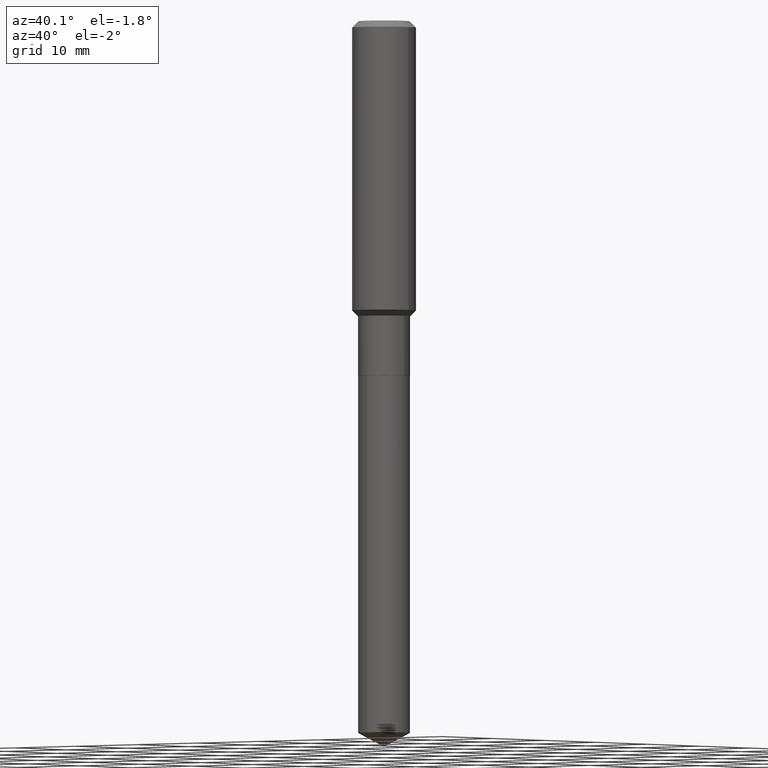
[diagram: clean part render]
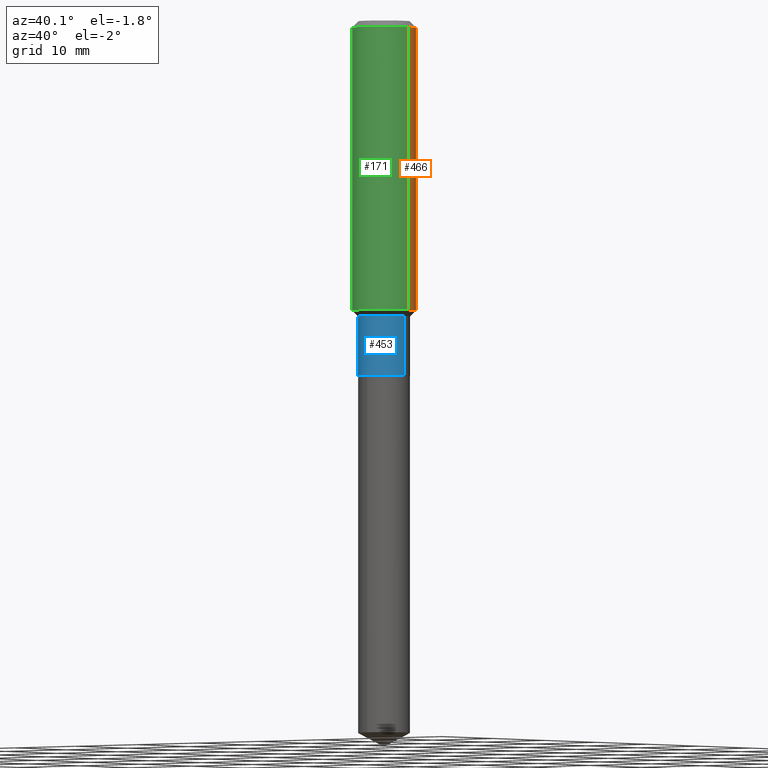
[diagram: same view with three faces highlighted in distinct colors, each labeled with its STEP entity id]
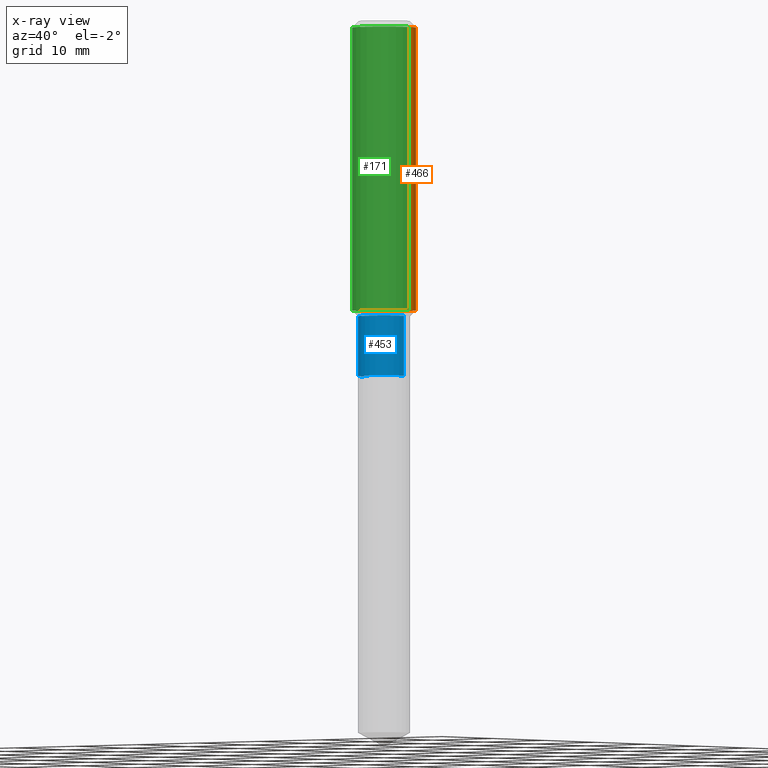
[diagram: x-ray of the same camera — body ghosted, the three highlighted faces saturated]
A machine part, auxiliary view with three faces highlighted in distinct colors.
The next image is the same camera in x-ray (body ghosted, the three faces saturated) — at least one of them is partly hidden behind the body in this view.
Their STEP definitions:

[orange] entity #466 — the highlighted cylindrical surface (edge-blend (fillet) strip) has radius 4.0005 mm, axis along (-0, 0, 1).
#15 = CIRCLE ( 'NONE', #238, 0.1575000000000001676 ) ;
#17 = CARTESIAN_POINT ( 'NONE',  ( 0.1575000000000000844, -1.099816621735587677E-15, 7.679978421878603638E-30 ) ) ;
#48 = DIRECTION ( 'NONE',  ( 1.000000000000000000, -6.982962677686267499E-15, 0.000000000000000000 ) ) ;
#53 = EDGE_CURVE ( 'NONE', #147, #361, #56, .T. ) ;
#56 = LINE ( 'NONE', #17, #309 ) ;
#77 = DIRECTION ( 'NONE',  ( -2.445468806185136597E-29, 3.491481338843145583E-15, 1.000000000000000000 ) ) ;
#90 = DIRECTION ( 'NONE',  ( 1.000000000000000000, -6.982962677686267499E-15, 4.876176775795936353E-29 ) ) ;
#95 = ORIENTED_EDGE ( 'NONE', *, *, #325, .T. ) ;
#116 = VECTOR ( 'NONE', #480, 39.37007874015748143 ) ;
#136 = EDGE_CURVE ( 'NONE', #264, #469, #146, .T. ) ;
#146 = LINE ( 'NONE', #383, #116 ) ;
#147 = VERTEX_POINT ( 'NONE', #228 ) ;
#153 = EDGE_LOOP ( 'NONE', ( #95, #243, #347, #333 ) ) ;
#202 = CARTESIAN_POINT ( 'NONE',  ( -0.1575000000000001676, -3.868127135581389429E-15, -1.428399999999999892 ) ) ;
#228 = CARTESIAN_POINT ( 'NONE',  ( 0.1575000000000001676, -6.087048566139137668E-15, -1.428399999999999892 ) ) ;
#238 = AXIS2_PLACEMENT_3D ( 'NONE', #313, #350, #48 ) ;
#240 = EDGE_CURVE ( 'NONE', #361, #469, #465, .T. ) ;
#242 = CARTESIAN_POINT ( 'NONE',  ( -0.1575000000000000011, -1.429501994466395839E-15, -0.03150000000000019451 ) ) ;
#243 = ORIENTED_EDGE ( 'NONE', *, *, #136, .T. ) ;
#259 = AXIS2_PLACEMENT_3D ( 'NONE', #375, #77, #427 ) ;
#264 = VERTEX_POINT ( 'NONE', #202 ) ;
#309 = VECTOR ( 'NONE', #403, 39.37007874015748143 ) ;
#313 = CARTESIAN_POINT ( 'NONE',  ( 3.493107642754849131E-29, -4.987231944403549399E-15, -1.428399999999999892 ) ) ;
#323 = DIRECTION ( 'NONE',  ( -2.445468806185136597E-29, 3.491481338843145583E-15, 1.000000000000000000 ) ) ;
#325 = EDGE_CURVE ( 'NONE', #147, #264, #15, .T. ) ;
#333 = ORIENTED_EDGE ( 'NONE', *, *, #53, .F. ) ;
#343 = AXIS2_PLACEMENT_3D ( 'NONE', #439, #323, #90 ) ;
#347 = ORIENTED_EDGE ( 'NONE', *, *, #240, .F. ) ;
#350 = DIRECTION ( 'NONE',  ( -2.445468806185136597E-29, 3.491481338843145583E-15, 1.000000000000000000 ) ) ;
#361 = VERTEX_POINT ( 'NONE', #451 ) ;
#375 = CARTESIAN_POINT ( 'NONE',  ( 7.703226739483228723E-31, -1.099816621735597661E-16, -0.03150000000000019451 ) ) ;
#383 = CARTESIAN_POINT ( 'NONE',  ( -0.1575000000000000844, 1.119104808822158392E-15, -7.747322767151481189E-30 ) ) ;
#403 = DIRECTION ( 'NONE',  ( -2.445468806185136877E-29, 3.491481338843145188E-15, 1.000000000000000000 ) ) ;
#427 = DIRECTION ( 'NONE',  ( 1.000000000000000000, -6.982962677686265922E-15, 0.000000000000000000 ) ) ;
#434 = CYLINDRICAL_SURFACE ( 'NONE', #343, 0.1575000000000000844 ) ;
#439 = CARTESIAN_POINT ( 'NONE',  ( 0.000000000000000000, 0.000000000000000000, 0.000000000000000000 ) ) ;
#451 = CARTESIAN_POINT ( 'NONE',  ( 0.1575000000000000011, -1.209798283909146741E-15, -0.03150000000000019451 ) ) ;
#463 = FACE_OUTER_BOUND ( 'NONE', #153, .T. ) ;
#465 = CIRCLE ( 'NONE', #259, 0.1575000000000000011 ) ;
#466 = ADVANCED_FACE ( 'NONE', ( #463 ), #434, .T. ) ;
#469 = VERTEX_POINT ( 'NONE', #242 ) ;
#480 = DIRECTION ( 'NONE',  ( -2.445468806185136877E-29, 3.491481338843145188E-15, 1.000000000000000000 ) ) ;

[blue] entity #453 — the highlighted cylindrical surface (edge-blend (fillet) strip) has radius 3.2639 mm, axis along (-0, 0, 1).
#9 = LINE ( 'NONE', #355, #428 ) ;
#12 = EDGE_CURVE ( 'NONE', #289, #144, #204, .T. ) ;
#23 = ORIENTED_EDGE ( 'NONE', *, *, #425, .F. ) ;
#35 = CARTESIAN_POINT ( 'NONE',  ( 0.000000000000000000, 0.000000000000000000, 0.000000000000000000 ) ) ;
#38 = CARTESIAN_POINT ( 'NONE',  ( -0.1285000000000000309, -4.690605559324578003E-15, -1.752499999999999947 ) ) ;
#66 = DIRECTION ( 'NONE',  ( -2.445468806185136877E-29, 3.491481338843145188E-15, 1.000000000000000000 ) ) ;
#92 = EDGE_LOOP ( 'NONE', ( #23, #338, #214, #435 ) ) ;
#103 = LINE ( 'NONE', #183, #122 ) ;
#122 = VECTOR ( 'NONE', #66, 39.37007874015748143 ) ;
#132 = CARTESIAN_POINT ( 'NONE',  ( -0.1284999999999999754, -4.690605559324578003E-15, -1.457400000000000251 ) ) ;
#144 = VERTEX_POINT ( 'NONE', #335 ) ;
#154 = DIRECTION ( 'NONE',  ( -2.445468806185136597E-29, 3.491481338843145583E-15, 1.000000000000000000 ) ) ;
#165 = VERTEX_POINT ( 'NONE', #38 ) ;
#174 = DIRECTION ( 'NONE',  ( -2.445468806185136597E-29, 3.491481338843145583E-15, 1.000000000000000000 ) ) ;
#177 = CARTESIAN_POINT ( 'NONE',  ( 3.564026238134218164E-29, -5.088484903230000551E-15, -1.457400000000000251 ) ) ;
#179 = DIRECTION ( 'NONE',  ( 1.000000000000000000, -6.982962677686270655E-15, 0.000000000000000000 ) ) ;
#183 = CARTESIAN_POINT ( 'NONE',  ( -0.1285000000000000031, 9.130474154517287609E-16, -6.320831590977552957E-30 ) ) ;
#204 = CIRCLE ( 'NONE', #314, 0.1284999999999999754 ) ;
#205 = AXIS2_PLACEMENT_3D ( 'NONE', #35, #154, #409 ) ;
#214 = ORIENTED_EDGE ( 'NONE', *, *, #315, .T. ) ;
#252 = DIRECTION ( 'NONE',  ( 1.000000000000000000, -6.982962677686269077E-15, 0.000000000000000000 ) ) ;
#257 = CYLINDRICAL_SURFACE ( 'NONE', #205, 0.1285000000000000031 ) ;
#260 = AXIS2_PLACEMENT_3D ( 'NONE', #373, #292, #252 ) ;
#289 = VERTEX_POINT ( 'NONE', #132 ) ;
#292 = DIRECTION ( 'NONE',  ( -2.445468806185136597E-29, 3.491481338843145583E-15, 1.000000000000000000 ) ) ;
#300 = CIRCLE ( 'NONE', #260, 0.1285000000000000031 ) ;
#314 = AXIS2_PLACEMENT_3D ( 'NONE', #177, #174, #179 ) ;
#315 = EDGE_CURVE ( 'NONE', #395, #144, #9, .T. ) ;
#318 = DIRECTION ( 'NONE',  ( -2.445468806185136877E-29, 3.491481338843145188E-15, 1.000000000000000000 ) ) ;
#335 = CARTESIAN_POINT ( 'NONE',  ( 0.1284999999999999754, -5.985795607312685728E-15, -1.457400000000000251 ) ) ;
#338 = ORIENTED_EDGE ( 'NONE', *, *, #457, .T. ) ;
#355 = CARTESIAN_POINT ( 'NONE',  ( 0.1285000000000000031, -8.973107040826851776E-16, 6.265887156897776961E-30 ) ) ;
#373 = CARTESIAN_POINT ( 'NONE',  ( 4.285684082839451370E-29, -6.118821046322612189E-15, -1.752499999999999947 ) ) ;
#395 = VERTEX_POINT ( 'NONE', #413 ) ;
#409 = DIRECTION ( 'NONE',  ( 1.000000000000000000, -6.982962677686265922E-15, 4.876176775795935232E-29 ) ) ;
#413 = CARTESIAN_POINT ( 'NONE',  ( 0.1285000000000000031, -7.016131750405297366E-15, -1.752499999999999947 ) ) ;
#425 = EDGE_CURVE ( 'NONE', #165, #289, #103, .T. ) ;
#428 = VECTOR ( 'NONE', #318, 39.37007874015748143 ) ;
#435 = ORIENTED_EDGE ( 'NONE', *, *, #12, .F. ) ;
#453 = ADVANCED_FACE ( 'NONE', ( #477 ), #257, .T. ) ;
#457 = EDGE_CURVE ( 'NONE', #165, #395, #300, .T. ) ;
#477 = FACE_OUTER_BOUND ( 'NONE', #92, .T. ) ;

[green] entity #171 — the highlighted cylindrical surface (edge-blend (fillet) strip) has radius 4.0005 mm, axis along (-0, 0, 1).
#17 = CARTESIAN_POINT ( 'NONE',  ( 0.1575000000000000844, -1.099816621735587677E-15, 7.679978421878603638E-30 ) ) ;
#42 = AXIS2_PLACEMENT_3D ( 'NONE', #416, #220, #261 ) ;
#53 = EDGE_CURVE ( 'NONE', #147, #361, #56, .T. ) ;
#56 = LINE ( 'NONE', #17, #309 ) ;
#58 = AXIS2_PLACEMENT_3D ( 'NONE', #218, #475, #69 ) ;
#69 = DIRECTION ( 'NONE',  ( 1.000000000000000000, -6.982962677686267499E-15, 0.000000000000000000 ) ) ;
#74 = DIRECTION ( 'NONE',  ( -2.445468806185136597E-29, 3.491481338843145583E-15, 1.000000000000000000 ) ) ;
#82 = DIRECTION ( 'NONE',  ( 1.000000000000000000, -6.982962677686267499E-15, 4.876176775795936353E-29 ) ) ;
#85 = CIRCLE ( 'NONE', #58, 0.1575000000000001676 ) ;
#116 = VECTOR ( 'NONE', #480, 39.37007874015748143 ) ;
#136 = EDGE_CURVE ( 'NONE', #264, #469, #146, .T. ) ;
#146 = LINE ( 'NONE', #383, #116 ) ;
#147 = VERTEX_POINT ( 'NONE', #228 ) ;
#171 = ADVANCED_FACE ( 'NONE', ( #226 ), #445, .T. ) ;
#202 = CARTESIAN_POINT ( 'NONE',  ( -0.1575000000000001676, -3.868127135581389429E-15, -1.428399999999999892 ) ) ;
#212 = ORIENTED_EDGE ( 'NONE', *, *, #53, .T. ) ;
#218 = CARTESIAN_POINT ( 'NONE',  ( 3.493107642754849131E-29, -4.987231944403549399E-15, -1.428399999999999892 ) ) ;
#220 = DIRECTION ( 'NONE',  ( -2.445468806185136597E-29, 3.491481338843145583E-15, 1.000000000000000000 ) ) ;
#226 = FACE_OUTER_BOUND ( 'NONE', #284, .T. ) ;
#228 = CARTESIAN_POINT ( 'NONE',  ( 0.1575000000000001676, -6.087048566139137668E-15, -1.428399999999999892 ) ) ;
#232 = ORIENTED_EDGE ( 'NONE', *, *, #136, .F. ) ;
#234 = EDGE_CURVE ( 'NONE', #264, #147, #85, .T. ) ;
#242 = CARTESIAN_POINT ( 'NONE',  ( -0.1575000000000000011, -1.429501994466395839E-15, -0.03150000000000019451 ) ) ;
#256 = ORIENTED_EDGE ( 'NONE', *, *, #363, .F. ) ;
#261 = DIRECTION ( 'NONE',  ( 1.000000000000000000, -6.982962677686265922E-15, 0.000000000000000000 ) ) ;
#264 = VERTEX_POINT ( 'NONE', #202 ) ;
#284 = EDGE_LOOP ( 'NONE', ( #232, #415, #212, #256 ) ) ;
#303 = CARTESIAN_POINT ( 'NONE',  ( 0.000000000000000000, 0.000000000000000000, 0.000000000000000000 ) ) ;
#309 = VECTOR ( 'NONE', #403, 39.37007874015748143 ) ;
#340 = CIRCLE ( 'NONE', #42, 0.1575000000000000011 ) ;
#352 = AXIS2_PLACEMENT_3D ( 'NONE', #303, #74, #82 ) ;
#361 = VERTEX_POINT ( 'NONE', #451 ) ;
#363 = EDGE_CURVE ( 'NONE', #469, #361, #340, .T. ) ;
#383 = CARTESIAN_POINT ( 'NONE',  ( -0.1575000000000000844, 1.119104808822158392E-15, -7.747322767151481189E-30 ) ) ;
#403 = DIRECTION ( 'NONE',  ( -2.445468806185136877E-29, 3.491481338843145188E-15, 1.000000000000000000 ) ) ;
#415 = ORIENTED_EDGE ( 'NONE', *, *, #234, .T. ) ;
#416 = CARTESIAN_POINT ( 'NONE',  ( 7.703226739483228723E-31, -1.099816621735597661E-16, -0.03150000000000019451 ) ) ;
#445 = CYLINDRICAL_SURFACE ( 'NONE', #352, 0.1575000000000000844 ) ;
#451 = CARTESIAN_POINT ( 'NONE',  ( 0.1575000000000000011, -1.209798283909146741E-15, -0.03150000000000019451 ) ) ;
#469 = VERTEX_POINT ( 'NONE', #242 ) ;
#475 = DIRECTION ( 'NONE',  ( -2.445468806185136597E-29, 3.491481338843145583E-15, 1.000000000000000000 ) ) ;
#480 = DIRECTION ( 'NONE',  ( -2.445468806185136877E-29, 3.491481338843145188E-15, 1.000000000000000000 ) ) ;